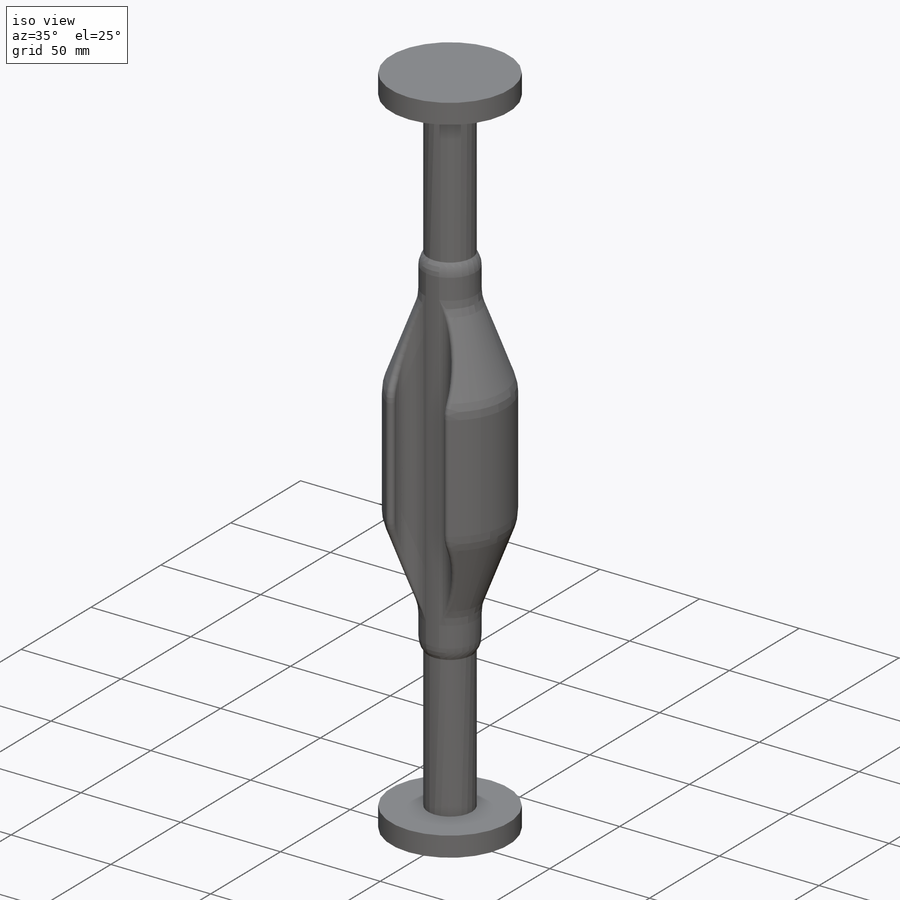
[diagram: iso view]
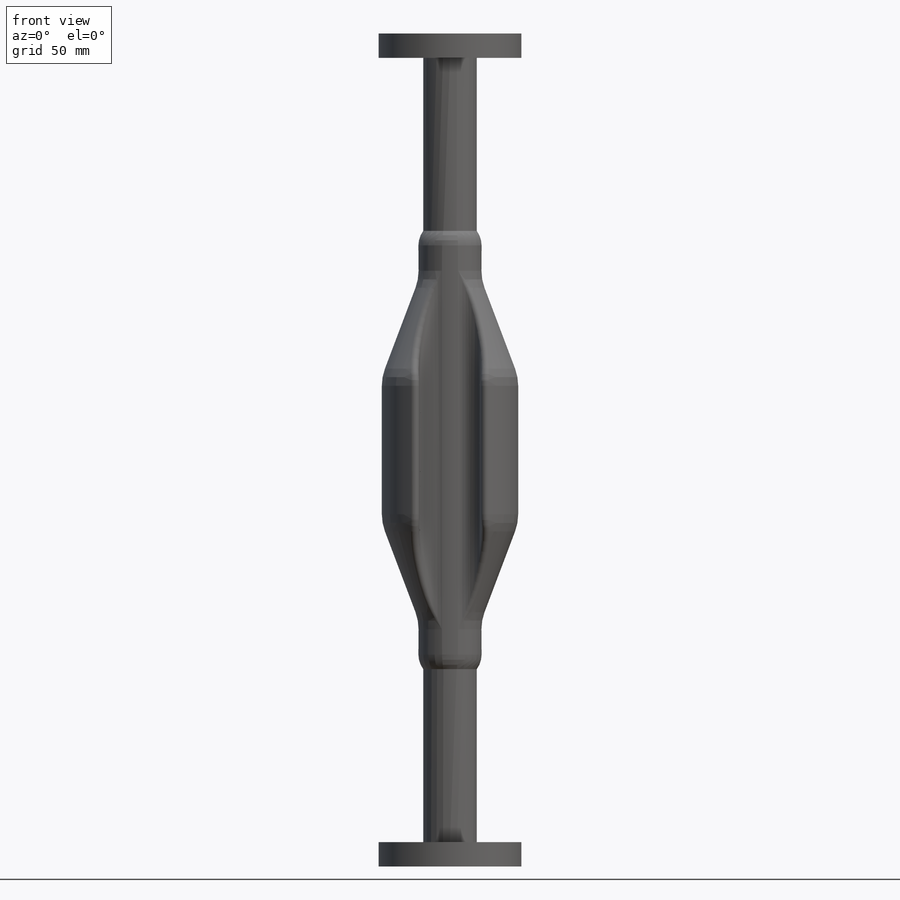
[diagram: front view]
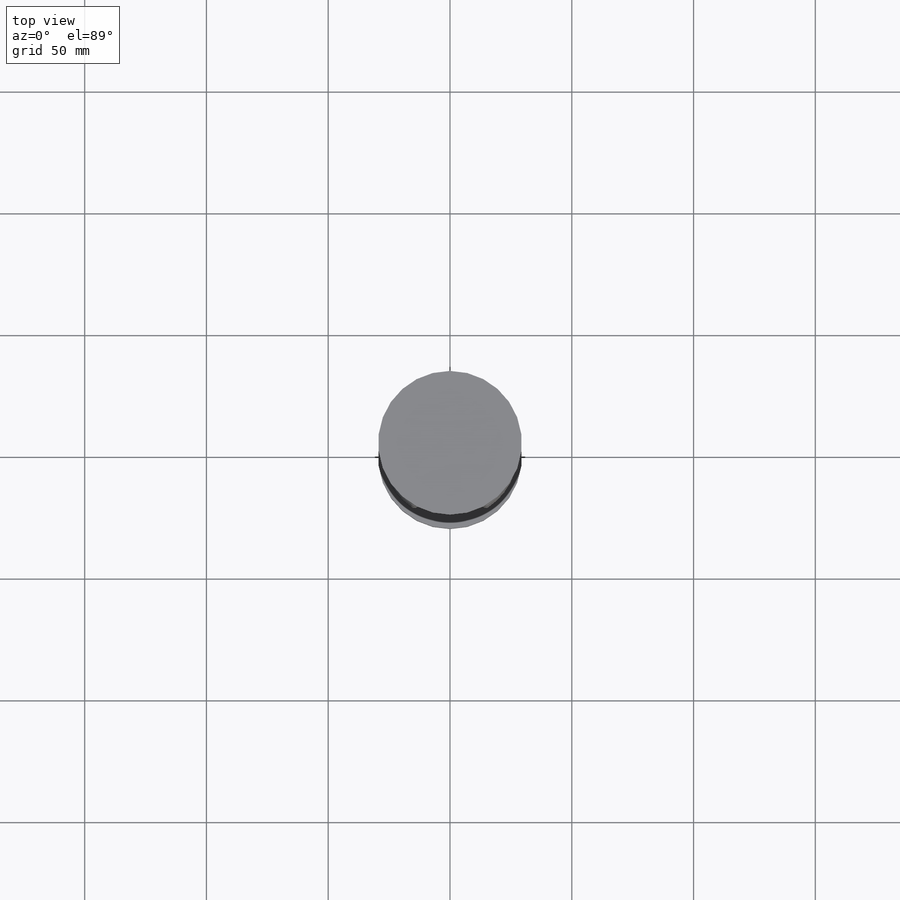
[diagram: top view]
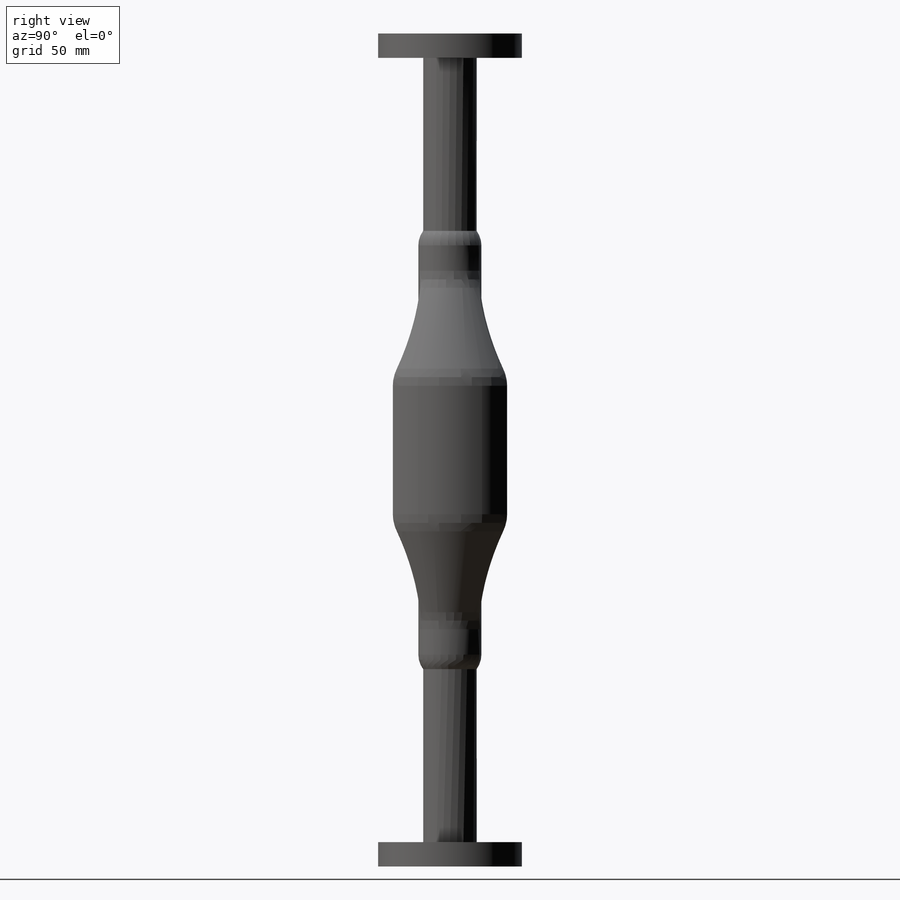
[diagram: right view]
SOLIDWORKS PART (.sldprt)
format: sldprt  version: not decoded by parser v0  size: 581,632 bytes
history: native  units: mm
features: sketch x12, extrude x5, fillet x5, plane x4, cut_extrude x4, pattern_circular x2, material x1, revolve x1, helix x1, mirror x1, sweep x1 (+8 scaffold rows collapsed)
feature tree (45):
  scaffold x8  (default folders/planes/origin — collapsed)
  material  "Материал <не указан>"
  plane  "Спереди"
  plane  "Сверху"
  plane  "Справа"
  sketch  "Профіль гідродинамічного схилу"  dims[c1.D1=13.0mm c1.D2=28.0mm c1.D3=~32.121248mm c2.D3=45.0deg c3.D3=40.0mm]
  revolve  "Гідродинамічний схил"  Angle=360deg
  sketch  "Ескіз1"
  extrude  "Перехідний циліндр"  Depth=20mm
  sketch  "Профіль канавки"  dims[c1.D1=20.5mm c2.D1=30.0deg c2.D2=40.0mm]
  sketch  "Ескіз2"
  helix  "Спіраль"  Pitch=200mm
  sketch  "Профіль зовнішнього циліндра"
  extrude  "Зовнішній циліндр"  Depth=30mm
  sketch  "Профіль штанги"  dims[D1=22.0mm]
  extrude  "Штанга"  Depth=71mm
  fillet  "Скруглення перехідного циліндра"  Radius=10mm
  fillet  "Внутрішнє скруглення"  Radius=20mm
  fillet  "Зовнішнє скруглення"  Radius=20mm
  sketch  "Профіль заглушки"  dims[D1=59.0mm]
  extrude  "Заглушка"  Depth=10mm
  mirror  "Дзеркальне відображення"
  sweep  "Спіральна канавка"
  fillet  "Скруглення лопатей1"  Radius=2mm
  pattern_circular  "Круговий масив1"  Count=2 Angle=360deg
  cut_extrude  "Пряма канавка"  [1 undecoded]
  sketch  "Профіль канавки<3>"
  fillet  "Скруглення лопатей2"  Radius=2mm
  pattern_circular  "Круговий масив2"  Count=2 Angle=180deg
  sketch  "Профіль труби"  dims[D1=~34.951496mm]
  extrude  "Труба"  [1 undecoded]
  sketch  "Эскиз1"  dims[c1.D1=~27.781386mm c1.D2=59.0mm c2.D1=5.0mm]
  cut_extrude  "Нерівномірний знос"  [1 undecoded]
  sketch  "Эскиз2"  dims[D1=47.0mm]
  cut_extrude  "Рівномірний знос"  [1 undecoded]
  plane  "Площина1"
  sketch  "Эскиз3"  dims[D1=200.0mm]
  cut_extrude  "Поперечний перетин"  [1 undecoded]
decode coverage: 21 of 32 modeling features carry decoded parameters
note: ~ marks probable driven/reference dimensions
note: 5 parameter values undecoded
summary: no parameter record found for 5 features
note: suppression state not decoded; provenance and decode notes live in map.json
